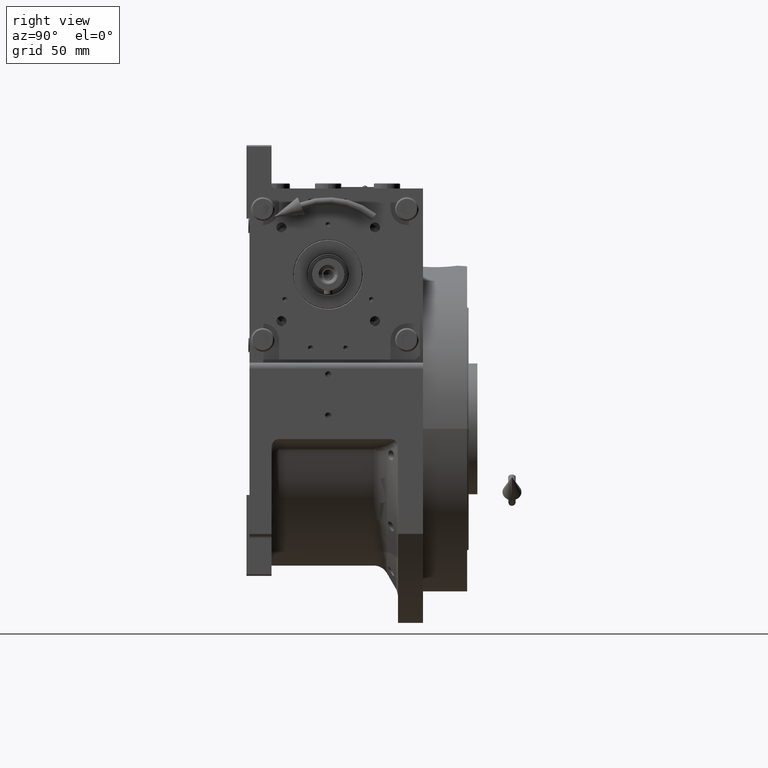
[diagram: clean part render]
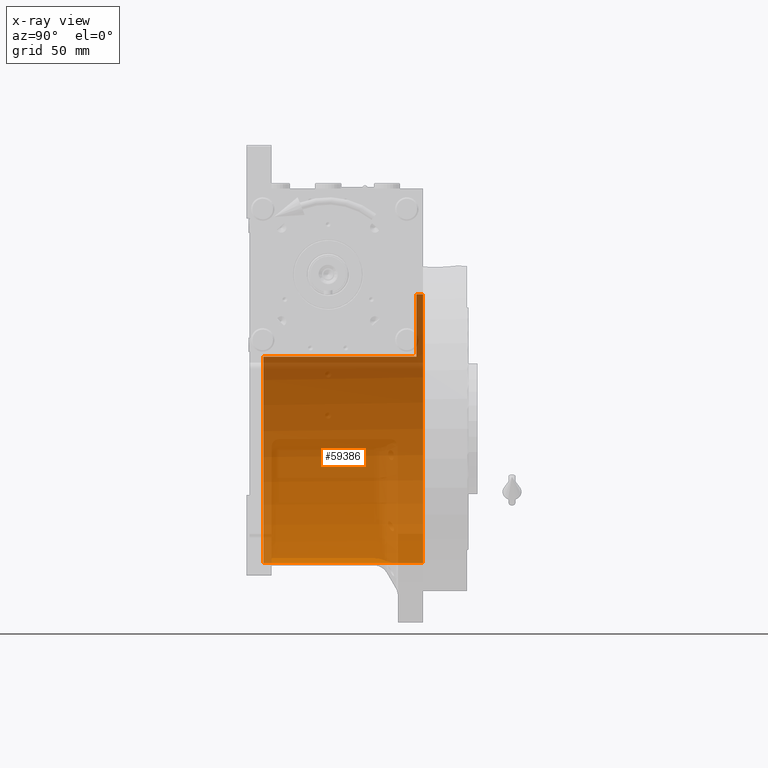
[diagram: x-ray — body ghosted, one internal face saturated and labeled with its STEP entity id]
A machine part, right view, then the same camera in x-ray: the body is ghosted and one INTERNAL B-rep face — a face not visible from any outside direction — is saturated and labeled: STEP entity #59386.
In plain terms, the highlighted cylindrical surface (partial cylindrical patch) has radius 91.5 mm, axis along (0, -1, 0).
Its self-contained STEP definition (entity closure, byte-faithful):
#1699 = CARTESIAN_POINT ( 'NONE',  ( 1.120551821219827868E-14, 69.00000000000004263, 91.50000000000000000 ) ) ;
#2273 = DIRECTION ( 'NONE',  ( 0.000000000000000000, -1.000000000000000000, 0.000000000000000000 ) ) ;
#3571 = EDGE_CURVE ( 'NONE', #26806, #54050, #12946, .T. ) ;
#4730 = ORIENTED_EDGE ( 'NONE', *, *, #10777, .F. ) ;
#8127 = CARTESIAN_POINT ( 'NONE',  ( -77.27386362800814368, 60.00000000000000000, 48.99999999999998579 ) ) ;
#9473 = VERTEX_POINT ( 'NONE', #61845 ) ;
#9988 = EDGE_LOOP ( 'NONE', ( #25219, #28020, #4730, #15146, #31682, #37286 ) ) ;
#10140 = VERTEX_POINT ( 'NONE', #30958 ) ;
#10272 = CIRCLE ( 'NONE', #42185, 91.50000000000000000 ) ;
#10777 = EDGE_CURVE ( 'NONE', #56218, #36260, #33578, .T. ) ;
#12946 = CIRCLE ( 'NONE', #51422, 91.50000000000000000 ) ;
#12975 = EDGE_CURVE ( 'NONE', #9473, #10140, #10272, .T. ) ;
#15146 = ORIENTED_EDGE ( 'NONE', *, *, #24761, .F. ) ;
#15405 = VECTOR ( 'NONE', #2273, 1000.000000000000000 ) ;
#17063 = VECTOR ( 'NONE', #44388, 1000.000000000000000 ) ;
#18461 = CARTESIAN_POINT ( 'NONE',  ( 0.000000000000000000, 69.00000000000004263, -91.50000000000000000 ) ) ;
#18743 = DIRECTION ( 'NONE',  ( 0.000000000000000000, 0.000000000000000000, -1.000000000000000000 ) ) ;
#19353 = CARTESIAN_POINT ( 'NONE',  ( 0.000000000000000000, -44.00000000000000000, 0.000000000000000000 ) ) ;
#19586 = CARTESIAN_POINT ( 'NONE',  ( 1.120551821219827868E-14, 64.50000000000000000, 91.50000000000000000 ) ) ;
#24208 = DIRECTION ( 'NONE',  ( 0.000000000000000000, 1.000000000000000000, 0.000000000000000000 ) ) ;
#24495 = DIRECTION ( 'NONE',  ( -0.000000000000000000, 1.000000000000000000, -0.000000000000000000 ) ) ;
#24761 = EDGE_CURVE ( 'NONE', #10140, #56218, #45481, .T. ) ;
#25219 = ORIENTED_EDGE ( 'NONE', *, *, #3571, .F. ) ;
#26806 = VERTEX_POINT ( 'NONE', #19586 ) ;
#27543 = CARTESIAN_POINT ( 'NONE',  ( 0.000000000000000000, 64.50000000000000000, 0.000000000000000000 ) ) ;
#28020 = ORIENTED_EDGE ( 'NONE', *, *, #55694, .T. ) ;
#30958 = CARTESIAN_POINT ( 'NONE',  ( -77.27386362800814368, -44.00000000000000000, 49.00000000000000000 ) ) ;
#31682 = ORIENTED_EDGE ( 'NONE', *, *, #12975, .F. ) ;
#32165 = EDGE_CURVE ( 'NONE', #54050, #9473, #64581, .T. ) ;
#32501 = AXIS2_PLACEMENT_3D ( 'NONE', #62505, #42893, #63863 ) ;
#33546 = DIRECTION ( 'NONE',  ( 0.000000000000000000, -1.000000000000000000, 0.000000000000000000 ) ) ;
#33578 = CIRCLE ( 'NONE', #32501, 91.50000000000000000 ) ;
#34918 = CYLINDRICAL_SURFACE ( 'NONE', #57002, 91.50000000000000000 ) ;
#35306 = CARTESIAN_POINT ( 'NONE',  ( 1.120551821219827868E-14, 60.00000000000000000, 91.50000000000000000 ) ) ;
#36260 = VERTEX_POINT ( 'NONE', #35306 ) ;
#36825 = VECTOR ( 'NONE', #24495, 1000.000000000000000 ) ;
#37286 = ORIENTED_EDGE ( 'NONE', *, *, #32165, .F. ) ;
#41092 = DIRECTION ( 'NONE',  ( -0.000000000000000000, -1.000000000000000000, -0.000000000000000000 ) ) ;
#42185 = AXIS2_PLACEMENT_3D ( 'NONE', #19353, #24208, #45859 ) ;
#42893 = DIRECTION ( 'NONE',  ( 0.000000000000000000, 1.000000000000000000, 0.000000000000000000 ) ) ;
#44388 = DIRECTION ( 'NONE',  ( 0.000000000000000000, -1.000000000000000000, 0.000000000000000000 ) ) ;
#45481 = LINE ( 'NONE', #50296, #36825 ) ;
#45859 = DIRECTION ( 'NONE',  ( 0.000000000000000000, 0.000000000000000000, 1.000000000000000000 ) ) ;
#49844 = LINE ( 'NONE', #1699, #17063 ) ;
#50296 = CARTESIAN_POINT ( 'NONE',  ( -77.27386362800812947, 69.00000000000004263, 48.99999999999998579 ) ) ;
#50379 = FACE_OUTER_BOUND ( 'NONE', #9988, .T. ) ;
#50517 = CARTESIAN_POINT ( 'NONE',  ( 0.000000000000000000, 64.50000000000000000, -91.50000000000000000 ) ) ;
#51422 = AXIS2_PLACEMENT_3D ( 'NONE', #27543, #41092, #56880 ) ;
#54050 = VERTEX_POINT ( 'NONE', #50517 ) ;
#55694 = EDGE_CURVE ( 'NONE', #26806, #36260, #49844, .T. ) ;
#56218 = VERTEX_POINT ( 'NONE', #8127 ) ;
#56880 = DIRECTION ( 'NONE',  ( 0.000000000000000000, 0.000000000000000000, 1.000000000000000000 ) ) ;
#57002 = AXIS2_PLACEMENT_3D ( 'NONE', #65904, #33546, #18743 ) ;
#59386 = ADVANCED_FACE ( 'NONE', ( #50379 ), #34918, .F. ) ;
#61845 = CARTESIAN_POINT ( 'NONE',  ( 0.000000000000000000, -44.00000000000000000, -91.50000000000000000 ) ) ;
#62505 = CARTESIAN_POINT ( 'NONE',  ( 0.000000000000000000, 60.00000000000000000, 0.000000000000000000 ) ) ;
#63863 = DIRECTION ( 'NONE',  ( 1.776356839400250465E-15, 0.000000000000000000, -1.000000000000000000 ) ) ;
#64581 = LINE ( 'NONE', #18461, #15405 ) ;
#65904 = CARTESIAN_POINT ( 'NONE',  ( 0.000000000000000000, 69.00000000000004263, 0.000000000000000000 ) ) ;